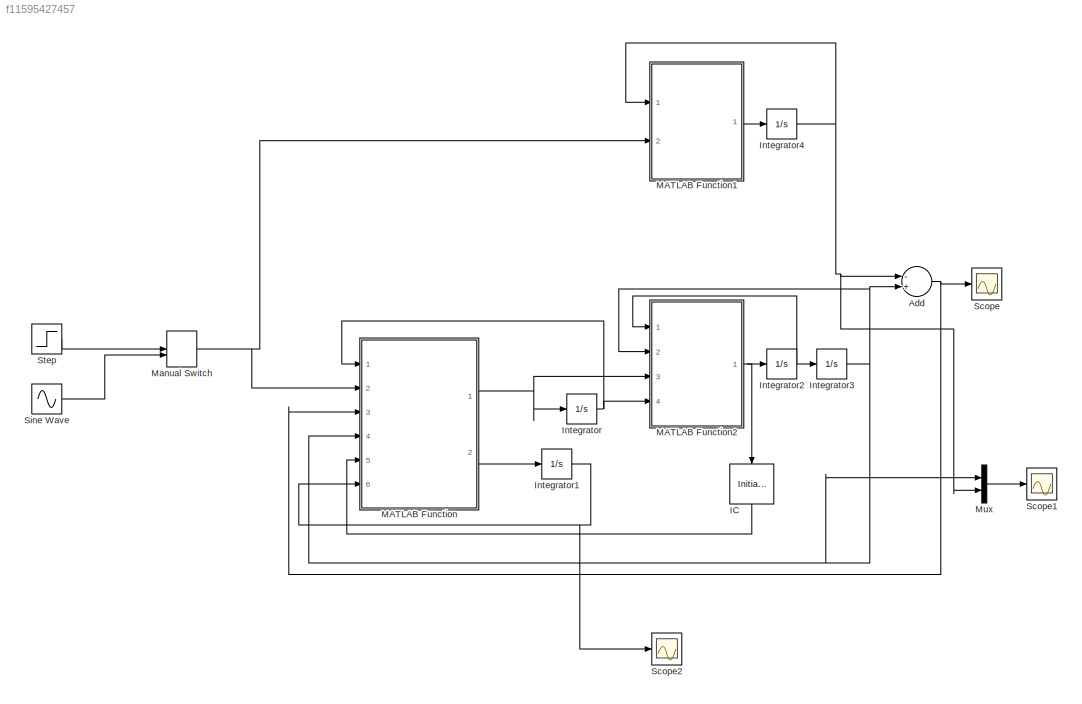
MODEL slx_f11595427457
KIND model
CONFIG AbsTol = auto
CONFIG FixedStep = 0.01
CONFIG MaxStep = auto
CONFIG MinStep = auto
CONFIG RelTol = 1e-3
CONFIG SampleTimeConstraint = Unconstrained
CONFIG Solver = ode45
CONFIG SolverMode = Auto
CONFIG SolverName = ode45
CONFIG StartTime = 0.0
CONFIG StopTime = 10.0
BLOCK [Sum] Add
  InputSameDT = off
  Inputs = -+
  OutDataTypeStr = Inherit: Inherit via internal rule
  Ports = [2, 1]
  SaturateOnIntegerOverflow = off
BLOCK [InitialCondition] IC
  Value = ddxp0
BLOCK [Integrator] Integrator
  InitialCondition = u0
  Ports = [1, 1]
BLOCK [Integrator] Integrator1
  InitialCondition = theta0
  Ports = [1, 1]
BLOCK [Integrator] Integrator2
  InitialCondition = dxp0
  Ports = [1, 1]
BLOCK [Integrator] Integrator3
  InitialCondition = xp0
  Ports = [1, 1]
BLOCK [Integrator] Integrator4
  InitialCondition = xm0
  Ports = [1, 1]
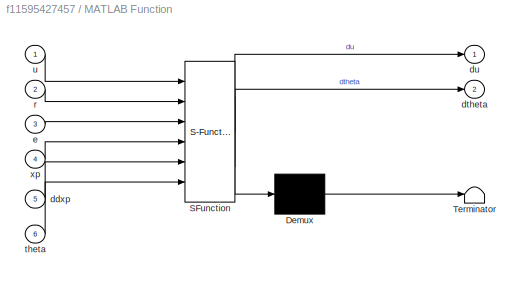
BLOCK [SubSystem] MATLAB Function
  ErrorFcn = Stateflow.Translate.translate
  PermitHierarchicalResolution = ExplicitOnly
  Ports = [6, 2]
  RequestExecContextInheritance = off
  SFBlockType = MATLAB Function
  TreatAsAtomicUnit = on
BLOCK [Demux] MATLAB Function/ Demux 
  Outputs = 1
  Ports = [1, 1]
BLOCK [S-Function] MATLAB Function/ SFunction 
  EnableBusSupport = on
  FunctionName = sf_sfun
  Parameters = gamma,kp
  PortCounts = [6 3]
  Ports = [6, 3]
  Tag = Stateflow S-Function simu 2
BLOCK [Terminator] MATLAB Function/ Terminator 
BLOCK [Inport] MATLAB Function/ddxp
  IconDisplay = Port number
  Port = 5
BLOCK [Outport] MATLAB Function/dtheta
  IconDisplay = Port number
  Port = 2
BLOCK [Outport] MATLAB Function/du
  IconDisplay = Port number
BLOCK [Inport] MATLAB Function/e
  IconDisplay = Port number
  Port = 3
BLOCK [Inport] MATLAB Function/r
  IconDisplay = Port number
  Port = 2
BLOCK [Inport] MATLAB Function/theta
  IconDisplay = Port number
  Port = 6
BLOCK [Inport] MATLAB Function/u
  IconDisplay = Port number
BLOCK [Inport] MATLAB Function/xp
  IconDisplay = Port number
  Port = 4
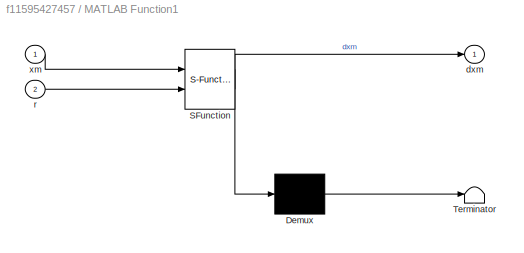
BLOCK [SubSystem] MATLAB Function1
  ErrorFcn = Stateflow.Translate.translate
  PermitHierarchicalResolution = ExplicitOnly
  Ports = [2, 1]
  RequestExecContextInheritance = off
  SFBlockType = MATLAB Function
  TreatAsAtomicUnit = on
BLOCK [Demux] MATLAB Function1/ Demux 
  Outputs = 1
  Ports = [1, 1]
BLOCK [S-Function] MATLAB Function1/ SFunction 
  EnableBusSupport = on
  FunctionName = sf_sfun
  Parameters = am,km
  PortCounts = [2 2]
  Ports = [2, 2]
  Tag = Stateflow S-Function simu 1
BLOCK [Terminator] MATLAB Function1/ Terminator 
BLOCK [Outport] MATLAB Function1/dxm
  IconDisplay = Port number
BLOCK [Inport] MATLAB Function1/r
  IconDisplay = Port number
  Port = 2
BLOCK [Inport] MATLAB Function1/xm
  IconDisplay = Port number
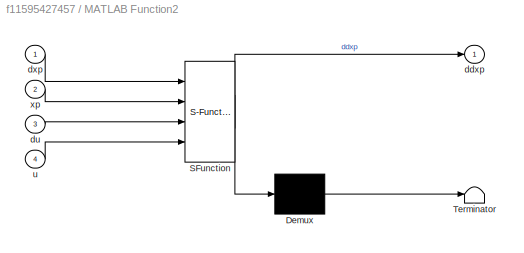
BLOCK [SubSystem] MATLAB Function2
  ErrorFcn = Stateflow.Translate.translate
  PermitHierarchicalResolution = ExplicitOnly
  Ports = [4, 1]
  RequestExecContextInheritance = off
  SFBlockType = MATLAB Function
  TreatAsAtomicUnit = on
BLOCK [Demux] MATLAB Function2/ Demux 
  Outputs = 1
  Ports = [1, 1]
BLOCK [S-Function] MATLAB Function2/ SFunction 
  EnableBusSupport = on
  FunctionName = sf_sfun
  Parameters = ap,bp,cp,kp
  PortCounts = [4 2]
  Ports = [4, 2]
  Tag = Stateflow S-Function simu 3
BLOCK [Terminator] MATLAB Function2/ Terminator 
BLOCK [Outport] MATLAB Function2/ddxp
  IconDisplay = Port number
BLOCK [Inport] MATLAB Function2/du
  IconDisplay = Port number
  Port = 3
BLOCK [Inport] MATLAB Function2/dxp
  IconDisplay = Port number
BLOCK [Inport] MATLAB Function2/u
  IconDisplay = Port number
  Port = 4
BLOCK [Inport] MATLAB Function2/xp
  IconDisplay = Port number
  Port = 2
BLOCK [ManualSwitch] Manual Switch
  CurrentSetting = 0
BLOCK [Mux] Mux
  DisplayOption = bar
  Inputs = 2
  Ports = [2, 1]
BLOCK [Scope] Scope
  Floating = off
  LimitDataPoints = off
  NumInputPorts = 1
  Ports = [1]
  YMax = 0
  YMin = -0.35
BLOCK [Scope] Scope1
  Floating = off
  LimitDataPoints = off
  NumInputPorts = 1
  Ports = [1]
  SaveName = ScopeData1
  YMax = 0.2
  YMin = -0.1
BLOCK [Scope] Scope2
  Floating = off
  LegendLocations = 0.72491     0.61667     0.20999     0.23542
  LimitDataPoints = off
  NumInputPorts = 1
  Ports = [1]
  SaveName = ScopeData2
  ShowLegends = on
  YMax = 1.5
  YMin = -2
BLOCK [Sin] Sine Wave
  Amplitude = 4
  Frequency = 2*pi/10
  Ports = [0, 1]
  SampleTime = 0
BLOCK [Step] Step
  SampleTime = 0
NET Add:1 -> MATLAB Function:3, Scope:1
LINE IC:1 -> MATLAB Function:5
NET Integrator1:1 -> MATLAB Function:6, Scope2:1
NET Integrator2:1 -> Integrator3:1, MATLAB Function2:1
NET Integrator3:1 -> Add:2, MATLAB Function2:2, MATLAB Function:4, Mux:1
NET Integrator4:1 -> Add:1, MATLAB Function1:1, Mux:2
NET Integrator:1 -> MATLAB Function2:4, MATLAB Function:1
LINE MATLAB Function1:1 -> Integrator4:1
NET MATLAB Function2:1 -> IC:1, Integrator2:1
NET MATLAB Function:1 -> Integrator:1, MATLAB Function2:3
LINE MATLAB Function:2 -> Integrator1:1
NET Manual Switch:1 -> MATLAB Function1:2, MATLAB Function:2
LINE Mux:1 -> Scope1:1
LINE Sine Wave:1 -> Manual Switch:2
LINE Step:1 -> Manual Switch:1
note: NET lines group one-source signal fan-out (src -> all destinations, sorted); 1:1 wires keep LINE
CHART MATLAB Function1 states=1 transitions=1
  STATE_LABEL 'eML_blk_kernel()'
  STATE_LABEL 'SCRIPT:\nfunction dxm = ref_model(xm, r, am, km)\n%#codegen\n\ndxm = am*xm + km*r;'
CHART MATLAB Function states=1 transitions=1
  STATE_LABEL 'eML_blk_kernel()'
  STATE_LABEL "SCRIPT:\nfunction [du, dtheta] = controller(u, r, e, xp, ddxp, theta, gamma, kp)\n%#codegen\n\nphi = [ddxp, xp, u, r]';\n\n%du = alpha*ddxp + beta*xp + delta*u + zeta*r;\ndu = theta'*phi;\n\ndtheta = -gamma*phi*e;"
CHART MATLAB Function2 states=1 transitions=1
  STATE_LABEL 'eML_blk_kernel()'
  STATE_LABEL 'SCRIPT:\nfunction ddxp = plant(dxp, xp, du, u, bp, ap, cp, kp)\n%#codegen\n\nddxp = (1/bp)*(dxp - ap*xp - cp*du - kp*u);'
